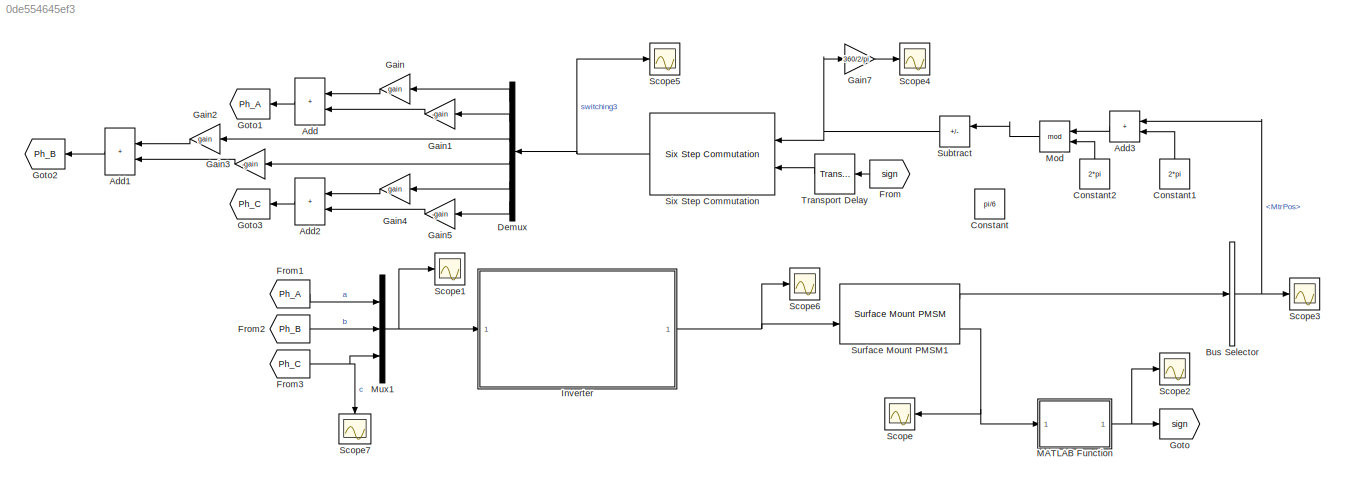
MODEL slx_0de554645ef3
KIND model
CONFIG AbsTol = auto
CONFIG EnableMultiTasking = off
CONFIG FixedStep = auto
CONFIG MaxStep = auto
CONFIG MinStep = auto
CONFIG RelTol = 1e-3
CONFIG SampleTimeConstraint = Unconstrained
CONFIG SolverName = VariableStepAuto
CONFIG StartTime = 0.0
CONFIG StopTime = 10
BLOCK [Sum] Add
  IconShape = rectangular
  NameLocation = top
  Ports = [2, 1]
BLOCK [Sum] Add1
  IconShape = rectangular
  NameLocation = top
  Ports = [2, 1]
BLOCK [Sum] Add2
  IconShape = rectangular
  NameLocation = top
  Ports = [2, 1]
BLOCK [Sum] Add3
  IconShape = rectangular
  NameLocation = top
  Ports = [2, 1]
BLOCK [BusSelector] Bus Selector
  OutputSignals = MtrPos
  Ports = [1, 1]
BLOCK [Constant] Constant
  NameLocation = right
  Value = pi/6
BLOCK [Constant] Constant1
  NameLocation = right
  Value = 2*pi
BLOCK [Constant] Constant2
  NameLocation = right
  Value = 2*pi
BLOCK [Demux] Demux
  NameLocation = top
  Outputs = 6
  Ports = [1, 6]
BLOCK [From] From
  GotoTag = sign
  NameLocation = top
BLOCK [From] From1
  GotoTag = Ph_A
BLOCK [From] From2
  GotoTag = Ph_B
BLOCK [From] From3
  GotoTag = Ph_C
BLOCK [Gain] Gain
  Gain = gain
  NameLocation = top
BLOCK [Gain] Gain1
  Gain = -gain
  NameLocation = top
BLOCK [Gain] Gain2
  Gain = gain
  NameLocation = top
BLOCK [Gain] Gain3
  Gain = -gain
  NameLocation = top
BLOCK [Gain] Gain4
  Gain = gain
  NameLocation = top
BLOCK [Gain] Gain5
  Gain = -gain
  NameLocation = top
BLOCK [Gain] Gain7
  Gain = 360/2/pi
BLOCK [Goto] Goto
  GotoTag = sign
BLOCK [Goto] Goto1
  GotoTag = Ph_A
  NameLocation = top
BLOCK [Goto] Goto2
  GotoTag = Ph_B
  NameLocation = top
BLOCK [Goto] Goto3
  GotoTag = Ph_C
  NameLocation = top
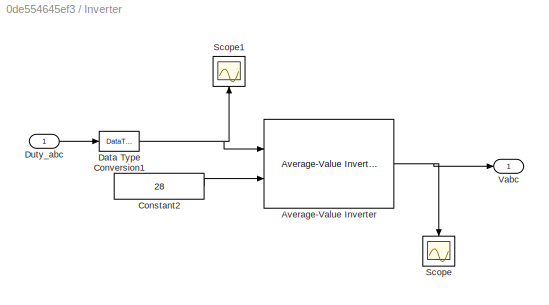
BLOCK [SubSystem] Inverter
  Ports = [1, 1]
  RequestExecContextInheritance = off
BLOCK [Reference] Inverter/Average-Value Inverter  REF=mcbplantlib/Average-Value Inverter
  Ports = [2, 1]
  SourceBlock = mcbplantlib/Average-Value Inverter
  SourceProductBaseCode = MT
  SourceType = Average Value Inverter
BLOCK [Constant] Inverter/Constant2
  OutDataTypeStr = single
  SampleTime = -1
  Value = 28
BLOCK [DataTypeConversion] Inverter/Data Type Conversion1
  OutDataTypeStr = single
  RndMeth = Simplest
  SaturateOnIntegerOverflow = off
BLOCK [Inport] Inverter/Duty_abc
BLOCK [Scope] Inverter/Scope
  Floating = off
  NameLocation = left
  NumInputPorts = 1
  Ports = [1]
  ScopeSpecificationString = Simulink.scopes.TimeScopeBlockCfg('CurrentConfiguration', extmgr.ConfigurationSet(extmgr.Configuration('Core','General UI',true),extmgr.Configuration('Core','Source UI',true),extmgr.Configuration('Sources','WiredSimulink',true),extmgr.Configuration('Visuals','Time Domain',true,'SerializedDisplays',{struct('MinYLimReal','-12.83333','MaxYLimReal','22.16667','YLabelReal','','MinYLimMag','0.00000','Ma...<+1477ch>
BLOCK [Scope] Inverter/Scope1
  Floating = off
  NameLocation = right
  NumInputPorts = 1
  Ports = [1]
  ScopeSpecificationString = Simulink.scopes.TimeScopeBlockCfg('CurrentConfiguration', extmgr.ConfigurationSet(extmgr.Configuration('Core','General UI',true),extmgr.Configuration('Core','Source UI',true),extmgr.Configuration('Sources','WiredSimulink',true,'DataLoggingVariableName','ScopeData1'),extmgr.Configuration('Visuals','Time Domain',true,'SerializedDisplays',{struct('MinYLimReal','-1.25','MaxYLimReal','1.25','YLabelReal...<+1511ch>
BLOCK [Outport] Inverter/Vabc
  VectorParamsAs1DForOutWhenUnconnected = off
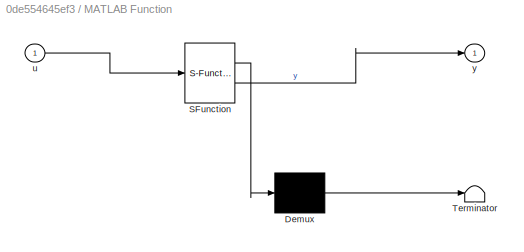
BLOCK [SubSystem] MATLAB Function
  ErrorFcn = Stateflow.Translate.translate
  PermitHierarchicalResolution = ExplicitOnly
  Ports = [1, 1]
  RequestExecContextInheritance = off
  SFBlockType = MATLAB Function
  TreatAsAtomicUnit = on
BLOCK [Demux] MATLAB Function/ Demux 
  Outputs = 1
  Ports = [1, 1]
BLOCK [S-Function] MATLAB Function/ SFunction 
  EnableBusSupport = on
  FunctionName = sf_sfun
  PortCounts = [1 2]
  Ports = [1, 2]
  SFcnIsStateOwnerBlock = off
  SFunctionDeploymentMode = off
  Tag = Stateflow S-Function 2
BLOCK [Terminator] MATLAB Function/ Terminator 
BLOCK [Inport] MATLAB Function/u
BLOCK [Outport] MATLAB Function/y
BLOCK [Math] Mod
  NameLocation = top
  Operator = mod
  Ports = [2, 1]
BLOCK [Mux] Mux1
  DisplayOption = bar
  Inputs = 3
  Ports = [3, 1]
BLOCK [Scope] Scope
  Floating = off
  NameLocation = top
  NumInputPorts = 1
  Ports = [1]
  ScopeSpecificationString = Simulink.scopes.TimeScopeBlockCfg('CurrentConfiguration', extmgr.ConfigurationSet(extmgr.Configuration('Core','General UI',true),extmgr.Configuration('Core','Source UI',true),extmgr.Configuration('Sources','WiredSimulink',true,'DataLoggingVariableName','ScopeData8'),extmgr.Configuration('Visuals','Time Domain',true,'SerializedDisplays',{struct('MinYLimReal','-317.1172','MaxYLimReal','35.23524','YL...<+1388ch>
BLOCK [Scope] Scope1
  Floating = off
  NumInputPorts = 1
  Ports = [1]
  ScopeSpecificationString = Simulink.scopes.TimeScopeBlockCfg('CurrentConfiguration', extmgr.ConfigurationSet(extmgr.Configuration('Core','General UI',true),extmgr.Configuration('Core','Source UI',true),extmgr.Configuration('Sources','WiredSimulink',true,'DataLoggingVariableName','ScopeData3'),extmgr.Configuration('Visuals','Time Domain',true,'SerializedDisplays',{struct('MinYLimReal','-1.25','MaxYLimReal','1.25','YLabelReal...<+1464ch>
BLOCK [Scope] Scope2
  Floating = off
  NumInputPorts = 1
  Ports = [1]
  ScopeSpecificationString = Simulink.scopes.TimeScopeBlockCfg('CurrentConfiguration', extmgr.ConfigurationSet(extmgr.Configuration('Core','General UI',true),extmgr.Configuration('Core','Source UI',true),extmgr.Configuration('Sources','WiredSimulink',true,'DataLoggingVariableName','ScopeData4'),extmgr.Configuration('Visuals','Time Domain',true,'SerializedDisplays',{struct('MinYLimReal','-1.25','MaxYLimReal','1.25','YLabelReal...<+1356ch>
BLOCK [Scope] Scope3
  Floating = off
  NumInputPorts = 1
  Ports = [1]
  ScopeSpecificationString = Simulink.scopes.TimeScopeBlockCfg('CurrentConfiguration', extmgr.ConfigurationSet(extmgr.Configuration('Core','General UI',true),extmgr.Configuration('Core','Source UI',true),extmgr.Configuration('Sources','WiredSimulink',true,'DataLoggingVariableName','ScopeData2'),extmgr.Configuration('Visuals','Time Domain',true,'SerializedDisplays',{struct('MinYLimReal','-0.15909','MaxYLimReal','1.43179','YLab...<+1436ch>
BLOCK [Scope] Scope4
  Floating = off
  NumInputPorts = 1
  Ports = [1]
  ScopeSpecificationString = Simulink.scopes.TimeScopeBlockCfg('CurrentConfiguration', extmgr.ConfigurationSet(extmgr.Configuration('Core','General UI',true),extmgr.Configuration('Core','Source UI',true),extmgr.Configuration('Sources','WiredSimulink',true,'DataLoggingVariableName','ScopeData5'),extmgr.Configuration('Visuals','Time Domain',true,'SerializedDisplays',{struct('MinYLimReal','-75.00000','MaxYLimReal','375.00000','Y...<+1441ch>
BLOCK [Scope] Scope5
  Floating = off
  NumInputPorts = 1
  Ports = [1]
  ScopeSpecificationString = Simulink.scopes.TimeScopeBlockCfg('CurrentConfiguration', extmgr.ConfigurationSet(extmgr.Configuration('Core','General UI',true),extmgr.Configuration('Core','Source UI',true),extmgr.Configuration('Sources','WiredSimulink',true,'DataLoggingVariableName','ScopeData7'),extmgr.Configuration('Visuals','Time Domain',true,'SerializedDisplays',{struct('MinYLimReal','-0.125','MaxYLimReal','1.125','YLabelRe...<+1648ch>
BLOCK [Scope] Scope6
  Floating = off
  NumInputPorts = 1
  Ports = [1]
  ScopeSpecificationString = Simulink.scopes.TimeScopeBlockCfg('CurrentConfiguration', extmgr.ConfigurationSet(extmgr.Configuration('Core','General UI',true),extmgr.Configuration('Core','Source UI',true),extmgr.Configuration('Sources','WiredSimulink',true,'DataLoggingVariableName','ScopeData6'),extmgr.Configuration('Visuals','Time Domain',true,'SerializedDisplays',{struct('MinYLimReal','-12.83333','MaxYLimReal','22.16667','YL...<+1428ch>
BLOCK [Scope] Scope7
  Floating = off
  NameLocation = left
  NumInputPorts = 1
  Ports = [1]
  ScopeSpecificationString = Simulink.scopes.TimeScopeBlockCfg('CurrentConfiguration', extmgr.ConfigurationSet(extmgr.Configuration('Core','General UI',true),extmgr.Configuration('Core','Source UI',true),extmgr.Configuration('Sources','WiredSimulink',true,'DataLoggingVariableName','ScopeData9'),extmgr.Configuration('Visuals','Time Domain',true,'SerializedDisplays',{struct('MinYLimReal','-1.25','MaxYLimReal','1.25','YLabelReal...<+1413ch>
BLOCK [Reference] Six Step Commutation  REF=mcbcontrolslib/Six Step Commutation
  NameLocation = top
  Ports = [2, 1]
  SourceBlock = mcbcontrolslib/Six Step Commutation
  SourceProductBaseCode = MT
  SourceType = Six-Step Commutation
BLOCK [Sum] Subtract
  IconShape = rectangular
  Inputs = +-
  NameLocation = top
  Ports = [2, 1]
BLOCK [Reference] Surface Mount PMSM1  REF=autolibpmsmexterior/Surface Mount PMSM
  Ports = [2, 3]
  SourceBlock = autolibpmsmexterior/Surface Mount PMSM
  SourceProductBaseCode = PW,DR,MT,VE
  SourceType = Surface Mount PMSM
BLOCK [TransportDelay] Transport Delay
  DelayTime = 0.1
  NameLocation = top
  Ports = [1, 1]
LINE Add1:1 -> Goto2:1
LINE Add2:1 -> Goto3:1
LINE Add3:1 -> Mod:1
LINE Add:1 -> Goto1:1
NET Bus Selector:1 -> Add3:1, Scope3:1
LINE Constant1:1 -> Add3:2
LINE Constant2:1 -> Mod:2
LINE Demux:1 -> Gain:1
LINE Demux:2 -> Gain1:1
LINE Demux:3 -> Gain2:1
LINE Demux:4 -> Gain3:1
LINE Demux:5 -> Gain4:1
LINE Demux:6 -> Gain5:1
LINE From1:1 -> Mux1:1
LINE From2:1 -> Mux1:2
NET From3:1 -> Mux1:3, Scope7:1
LINE From:1 -> Transport Delay:1
LINE Gain1:1 -> Add:2
LINE Gain2:1 -> Add1:1
LINE Gain3:1 -> Add1:2
LINE Gain4:1 -> Add2:1
LINE Gain5:1 -> Add2:2
LINE Gain7:1 -> Scope4:1
LINE Gain:1 -> Add:1
NET Inverter/Average-Value Inverter:1 -> Inverter/Scope:1, Inverter/Vabc:1
LINE Inverter/Constant2:1 -> Inverter/Average-Value Inverter:2
NET Inverter/Data Type Conversion1:1 -> Inverter/Average-Value Inverter:1, Inverter/Scope1:1
LINE Inverter/Duty_abc:1 -> Inverter/Data Type Conversion1:1
NET Inverter:1 -> Scope6:1, Surface Mount PMSM1:2
NET MATLAB Function:1 -> Goto:1, Scope2:1
LINE Mod:1 -> Subtract:1
NET Mux1:1 -> Inverter:1, Scope1:1
NET Six Step Commutation:1 -> Demux:1, Scope5:1
NET Subtract:1 -> Gain7:1, Six Step Commutation:1
LINE Surface Mount PMSM1:1 -> Bus Selector:1
NET Surface Mount PMSM1:3 -> MATLAB Function:1, Scope:1
LINE Transport Delay:1 -> Six Step Commutation:2
note: NET lines group one-source signal fan-out (src -> all destinations, sorted); 1:1 wires keep LINE
CHART MATLAB Function states=1 transitions=1
  STATE_LABEL 'eML_blk_kernel()'
  STATE_LABEL 'SCRIPT:\nfunction y = fcn(u)\n    y = 1;\n    if u<0\n        y = -1;\n    end\nend\n\n'
CHART  states=0 transitions=0
